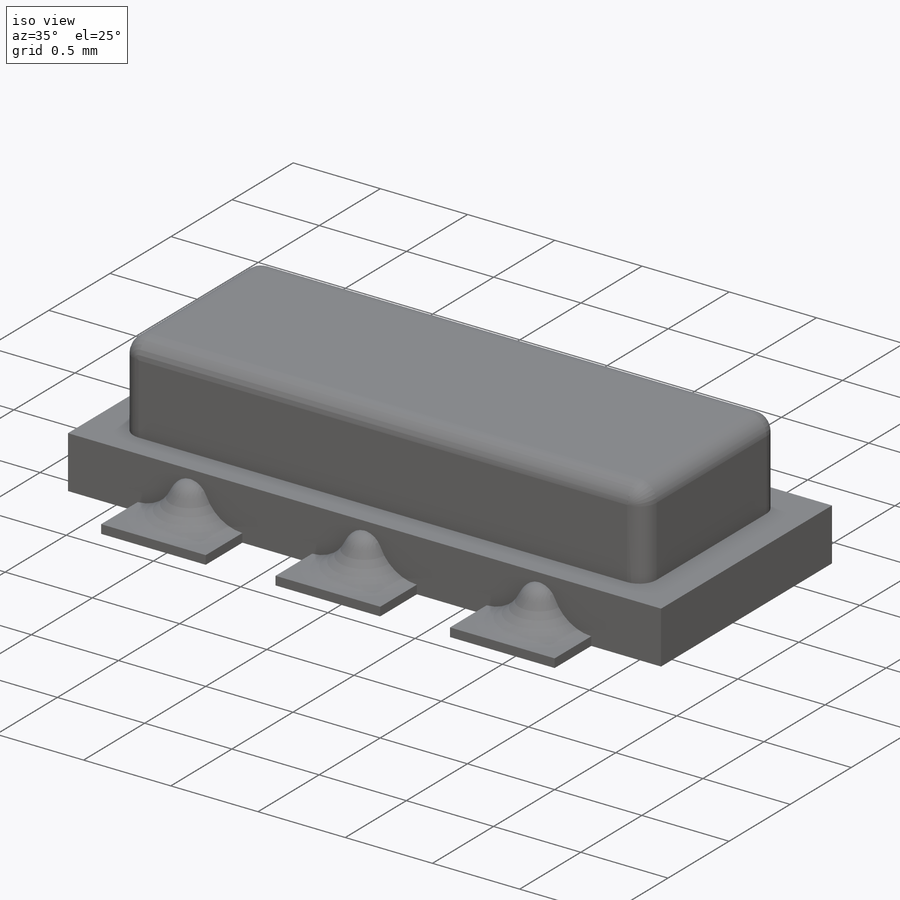
[diagram: iso view]
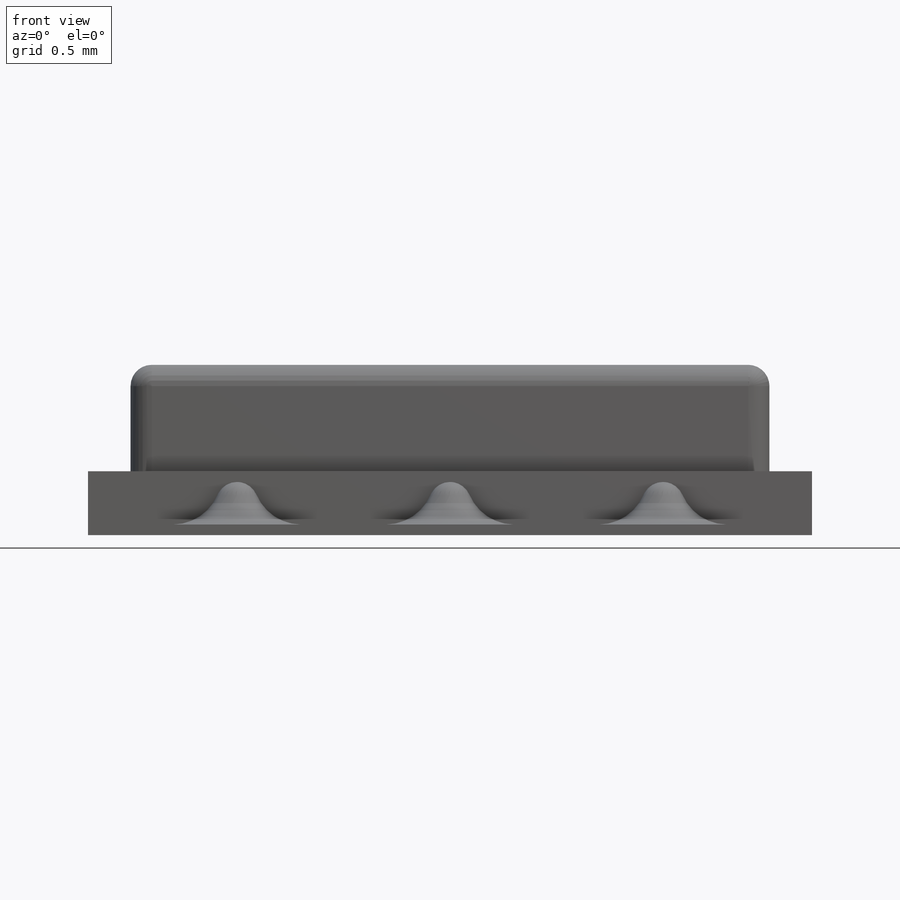
[diagram: front view]
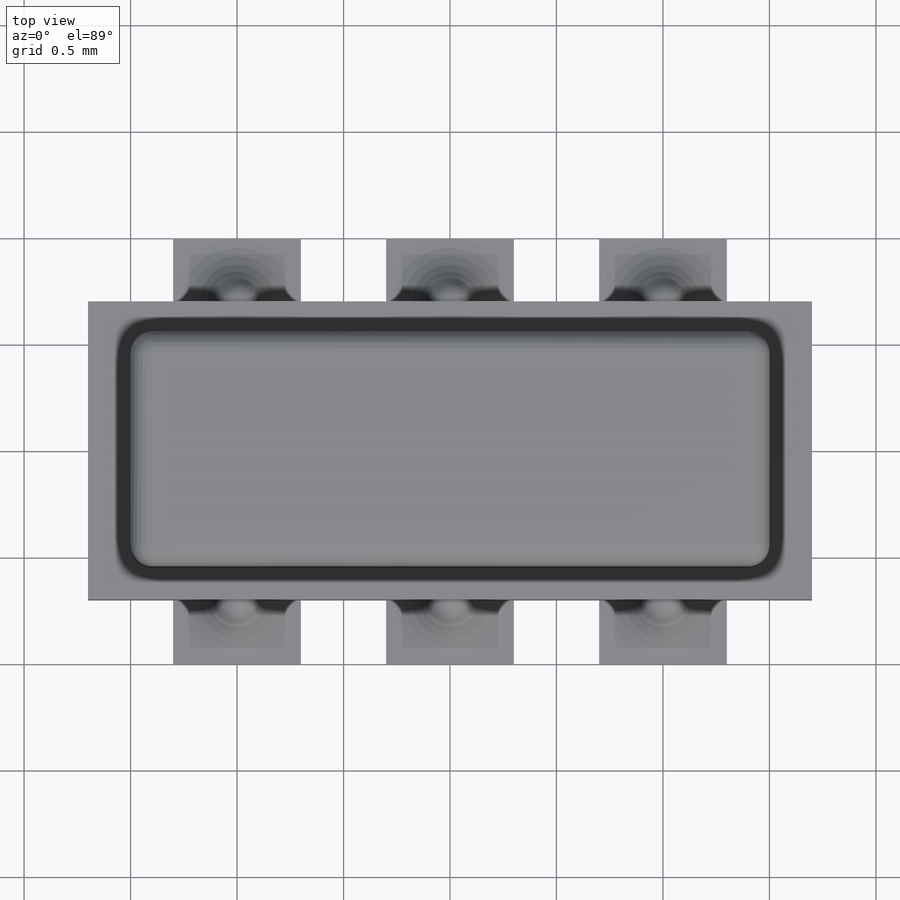
[diagram: top view]
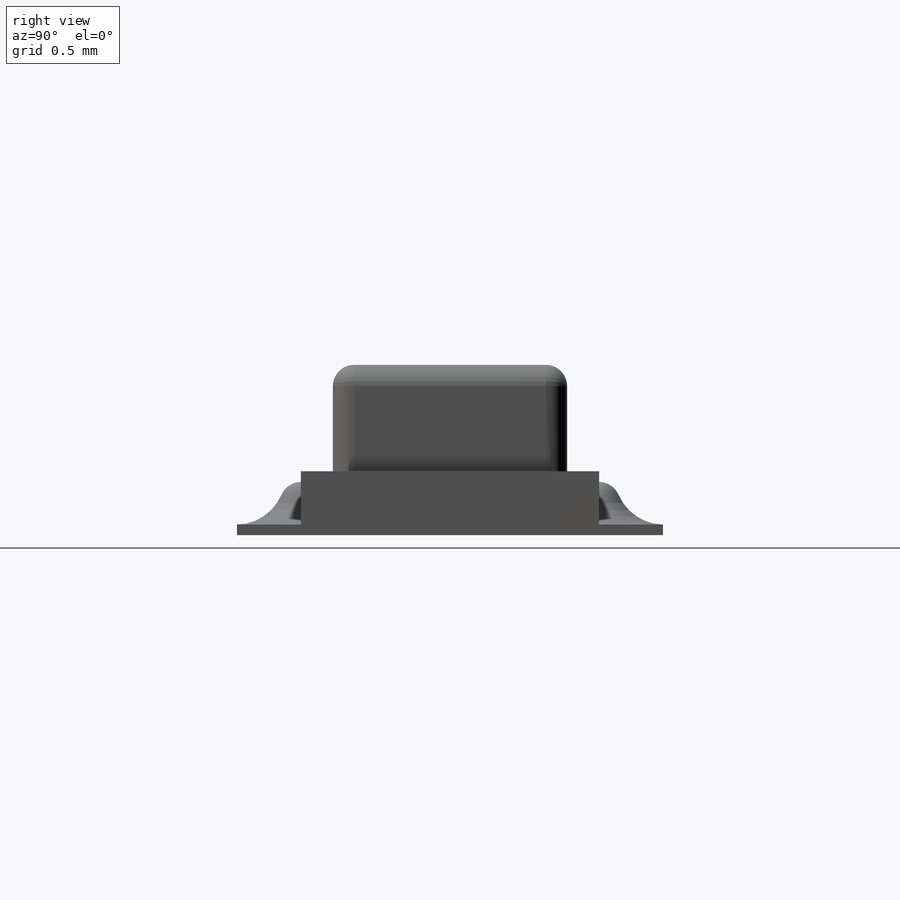
[diagram: right view]
SOLIDWORKS PART (.sldprt)
format: sldprt  version: not decoded by parser v0  size: 356,352 bytes
history: native  units: mm
features: sketch x4, extrude x3, material x1, fillet x1, plane x1, revolve x1, pattern_linear x1 (+13 scaffold rows collapsed)
feature tree (25):
  scaffold x13  (default folders/planes/origin — collapsed)
  material  "E-Glass Fiber"
  sketch  "Sketch1"  dims[D1=3.4mm D2=1.4mm D3=1.7mm D4=0.7mm]
  extrude  "Boss-Extrude1"  Depth=0.3mm
  sketch  "Sketch2"  dims[D5=0.1mm D1=1.1mm D2=0.55mm D3=3.0mm D4=1.5mm]
  extrude  "Boss-Extrude2"  Depth=0.5mm
  fillet  "Fillet1"  Radius=0.1mm
  sketch  "Sketch3"  dims[D1=1.0mm D2=1.0mm D3=0.3mm D4=0.6mm D5=2.0mm D6=1.0mm]
  extrude  "Boss-Extrude3"  Depth=0.05mm
  plane  "Plane1"  Offset=1mm
  sketch  "Sketch4"  dims[c1.D2=0.1mm c1.D4=0.23mm c1.D1=0.6mm c2.D2=~0.249624mm c2.D3=0.2mm]
  revolve  "Revolve2"  Angle=360deg
  pattern_linear  "LPattern1"  Count1=3 Count2=2 Spacing1=1mm Spacing2=1.4mm
decode coverage: 10 of 10 modeling features carry decoded parameters
note: ~ marks probable driven/reference dimensions
note: suppression state not decoded; provenance and decode notes live in map.json
